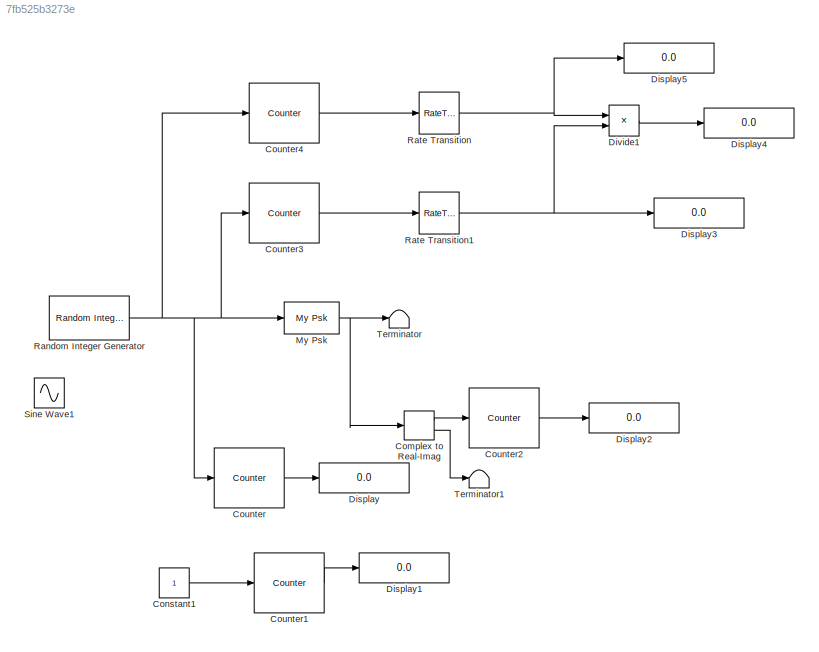
MODEL slx_7fb525b3273e
KIND model
BLOCK [ComplexToRealImag] Complex to Real-Imag
  Ports = [1, 2]
BLOCK [Constant] Constant1
  SampleTime = .1
BLOCK [Reference] Counter  REF=dspswit3/Counter
  CntDtype = double
  CountEvent = Non-zero sample
  CounterSize = User defined
  Direction = Up
  HitDtype = Logical
  HitValue = 32
  InitialCount = 0
  MaxCount = 999999999999
  Output = Count
  Ports = [1, 1]
  ResetInput = off
  SamplesPerFrame = 1
  SourceBlock = dspswit3/Counter
  SourceType = Counter
  Ts = 1
BLOCK [Reference] Counter1  REF=dspswit3/Counter
  CntDtype = double
  CountEvent = Non-zero sample
  CounterSize = User defined
  Direction = Up
  HitDtype = Logical
  HitValue = 32
  InitialCount = 0
  MaxCount = 999999999999
  Output = Count
  Ports = [1, 1]
  ResetInput = off
  SamplesPerFrame = 1
  SourceBlock = dspswit3/Counter
  SourceType = Counter
  Ts = 1
BLOCK [Reference] Counter2  REF=dspswit3/Counter
  CntDtype = double
  CountEvent = Non-zero sample
  CounterSize = User defined
  Direction = Up
  HitDtype = Logical
  HitValue = 32
  InitialCount = 0
  MaxCount = 999999999999
  Output = Count
  Ports = [1, 1]
  ResetInput = off
  SamplesPerFrame = 1
  SourceBlock = dspswit3/Counter
  SourceType = Counter
  Ts = 1
BLOCK [Reference] Counter3  REF=dspswit3/Counter
  CntDtype = double
  CountEvent = Non-zero sample
  CounterSize = User defined
  Direction = Up
  HitDtype = Logical
  HitValue = 32
  InitialCount = 0
  MaxCount = 999999999999
  Output = Count
  Ports = [1, 1]
  ResetInput = off
  SamplesPerFrame = 1
  SourceBlock = dspswit3/Counter
  SourceType = Counter
  Ts = 1
BLOCK [Reference] Counter4  REF=dspswit3/Counter
  CntDtype = double
  CountEvent = Non-zero sample
  CounterSize = User defined
  Direction = Up
  HitDtype = Logical
  HitValue = 32
  InitialCount = 0
  MaxCount = 999999999999
  Output = Count
  Ports = [1, 1]
  ResetInput = off
  SamplesPerFrame = 1
  SourceBlock = dspswit3/Counter
  SourceType = Counter
  Ts = 1
BLOCK [Display] Display
  Decimation = 1
  Ports = [1]
BLOCK [Display] Display1
  Decimation = 1
  Ports = [1]
BLOCK [Display] Display2
  Decimation = 1
  Ports = [1]
BLOCK [Display] Display3
  Decimation = 1
  Ports = [1]
BLOCK [Display] Display4
  Decimation = 1
  Ports = [1]
BLOCK [Display] Display5
  Decimation = 1
  Ports = [1]
BLOCK [Product] Divide1
  InputSameDT = off
  Inputs = */
  OutDataTypeStr = Inherit: Inherit via internal rule
  Ports = [2, 1]
  RndMeth = Floor
  SaturateOnIntegerOverflow = off
BLOCK [Reference] My Psk  REF=siglabs_lib/My Psk
  Ports = [1, 1]
  SampsPerSym = 2
  SourceBlock = siglabs_lib/My Psk
BLOCK [Reference] Random Integer Generator  REF=commrandsrc2/Random Integer
Generator
  Ports = [0, 1]
  SourceBlock = commrandsrc2/Random Integer\nGenerator
  SourceType = Random Integer Generator
  Ts = .1
  frameBased = off
  mul = 4
  orient = off
  outDataType = double
  sampPerFrame = 1
  seed = 37
BLOCK [RateTransition] Rate Transition
BLOCK [RateTransition] Rate Transition1
BLOCK [Sin] Sine Wave1
  Frequency = 2.1
  Ports = [0, 1]
  SampleTime = .1
BLOCK [Terminator] Terminator
BLOCK [Terminator] Terminator1
LINE Complex to Real-Imag:1 -> Counter2:1
LINE Complex to Real-Imag:2 -> Terminator1:1
LINE Constant1:1 -> Counter1:1
LINE Counter1:1 -> Display1:1
LINE Counter2:1 -> Display2:1
LINE Counter3:1 -> Rate Transition1:1
LINE Counter4:1 -> Rate Transition:1
LINE Counter:1 -> Display:1
LINE Divide1:1 -> Display4:1
NET My Psk:1 -> Complex to Real-Imag:1, Terminator:1
NET Random Integer Generator:1 -> Counter3:1, Counter4:1, Counter:1, My Psk:1
NET Rate Transition1:1 -> Display3:1, Divide1:2
NET Rate Transition:1 -> Display5:1, Divide1:1
note: NET lines group one-source signal fan-out (src -> all destinations, sorted); 1:1 wires keep LINE
